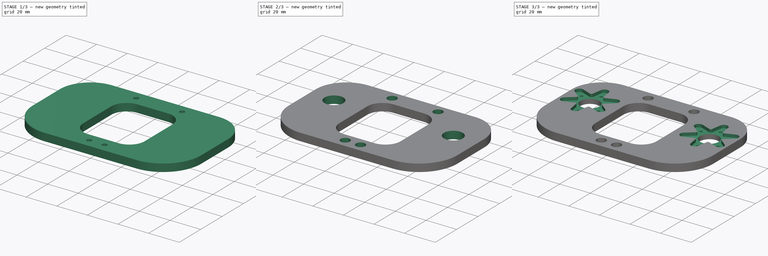
[diagram: build sequence overview — one tinted view per stage of 3, left to right]
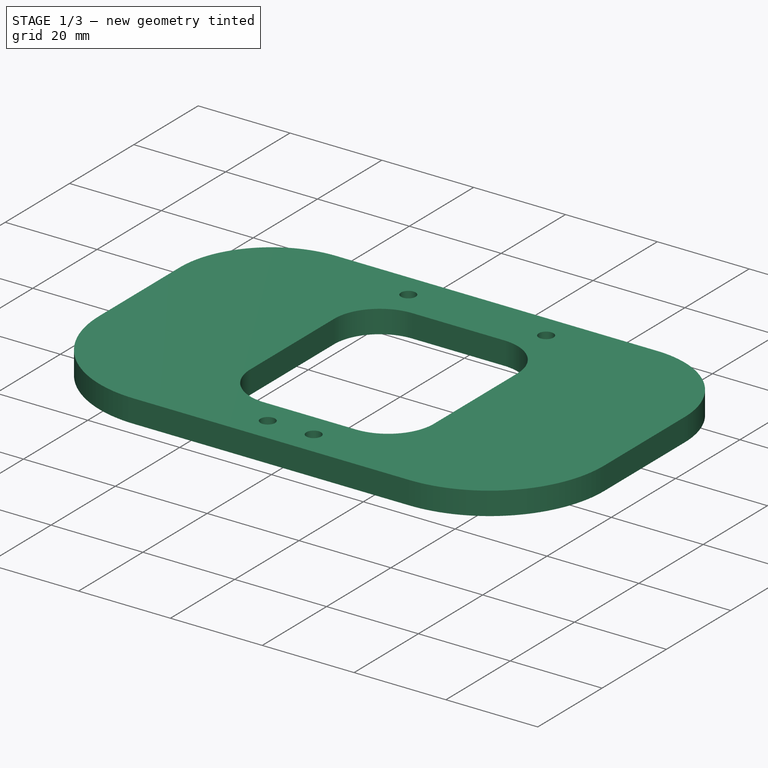
[diagram: stage 1 of 3 — iso view after this stage's code; geometry added in this stage tinted green]
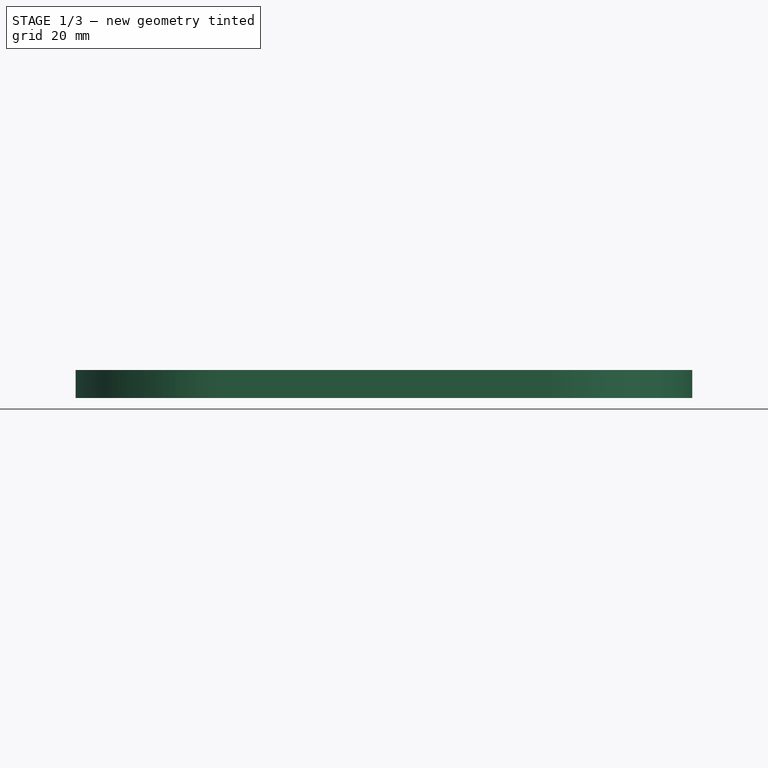
[diagram: stage 1 of 3 — front view after this stage's code; geometry added in this stage tinted green]
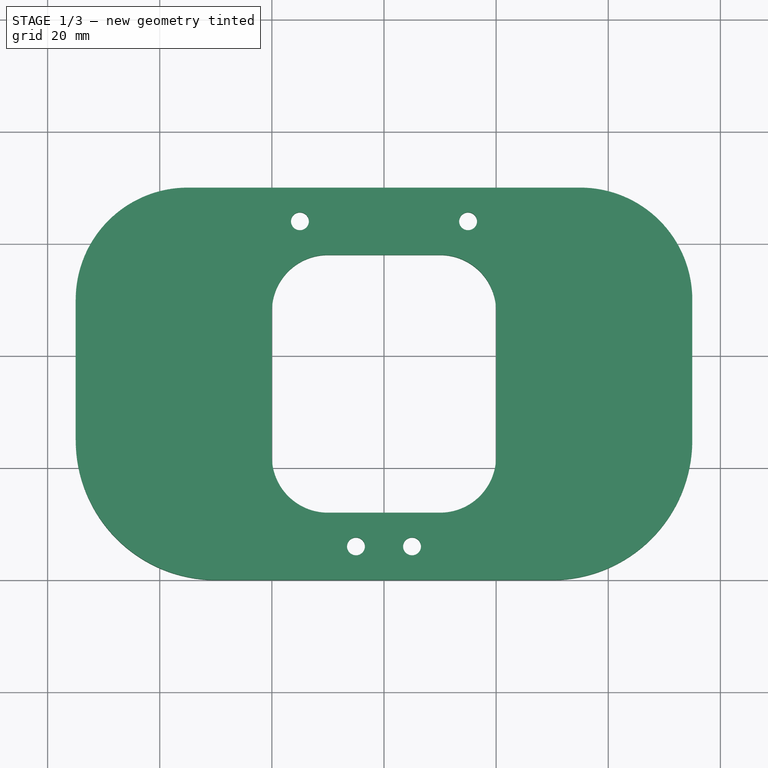
[diagram: stage 1 of 3 — top view after this stage's code; geometry added in this stage tinted green]
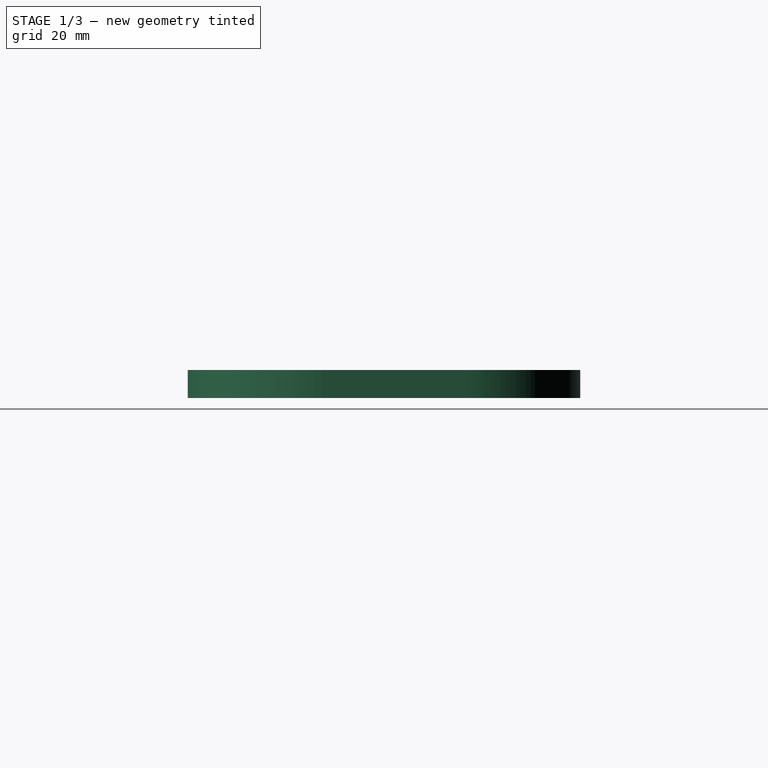
[diagram: stage 1 of 3 — right view after this stage's code; geometry added in this stage tinted green]
FCSTD DOCUMENT  (FreeCAD 0.18R4 (GitTag))
Label: Outer_Shoulder
License: CreativeCommons Attribution-NonCommercial
LicenseURL: http://creativecommons.org/licenses/by-nc/4.0/
objects: Sketcher::SketchObject×7, PartDesign::Pocket×6, PartDesign::Pad×1, PartDesign::Fillet×1, PartDesign::Body×1
note: 23 computed .brp shape members not serialized (recipe doc carries the construction recipe); baked Part::Feature solids carry a one-line shape summary decoded from their .brp

FEATURE [Sketcher::SketchObject] Sketch
  MapMode = 5
  Support = -> [XY_Plane]
  sketch-geometry (8):
    g0: LineSegment StartX=-35 StartY=70 StartZ=0 EndX=35 EndY=70 EndZ=0
    g1: LineSegment StartX=55 StartY=50 StartZ=0 EndX=55 EndY=25 EndZ=0
    g2: LineSegment StartX=30 StartY=0 StartZ=0 EndX=-30 EndY=0 EndZ=0
    g3: LineSegment StartX=-55 StartY=25 StartZ=0 EndX=-55 EndY=50 EndZ=0
    g4: ArcOfCircle CenterX=-35 CenterY=50 CenterZ=0 NormalX=0 NormalY=0 NormalZ=1 AngleXU=0 Radius=20 StartAngle=1.5708 EndAngle=3.14159
    g5: ArcOfCircle CenterX=35 CenterY=50 CenterZ=0 NormalX=0 NormalY=0 NormalZ=1 AngleXU=0 Radius=20 StartAngle=0 EndAngle=1.5708
    g6: ArcOfCircle CenterX=30 CenterY=25 CenterZ=0 NormalX=0 NormalY=0 NormalZ=1 AngleXU=0 Radius=25 StartAngle=4.71239 EndAngle=6.28319
    g7: ArcOfCircle CenterX=-30 CenterY=25 CenterZ=0 NormalX=0 NormalY=0 NormalZ=1 AngleXU=0 Radius=25 StartAngle=3.14159 EndAngle=4.71239
  constraints (19):
    c: Horizontal(g0)
    c: Horizontal(g2)
    c: Vertical(g1)
    c: Vertical(g3)
    c: Tangent(g3,g4) = 1.5708
    c: Tangent(g0,g4) = 1.5708
    c: Tangent(g0,g5) = 1.5708
    c: Tangent(g1,g5) = 1.5708
    c: Tangent(g1,g6) = 1.5708
    c: Tangent(g2,g6) = 1.5708
    c: Tangent(g2,g7) = 1.5708
    c: Tangent(g3,g7) = 1.5708
    c: Equal(g4,g5)
    c: Equal(g7,g6)
    c: Symmetric(g2,g2,g-1)
    c: Radius(g4) = 20
    c: Radius(g7) = 25
    c: DistanceY(g2,g0) = 70
    c: DistanceX(g3,g1) = 110
FEATURE [PartDesign::Pad] Pad  label="Baseplate"
  Length = 5
  Length2 = 100
  Profile = -> Sketch
  Type = 0
FEATURE [Sketcher::SketchObject] Sketch001
  MapMode = 5
  Placement = pos=(0,0,5) rot=(0,0,1;0rad)
  Support = -> [Pad]
  sketch-geometry (8):
    g0: LineSegment StartX=-10 StartY=58 StartZ=0 EndX=10 EndY=58 EndZ=0
    g1: LineSegment StartX=20 StartY=48 StartZ=0 EndX=20 EndY=22 EndZ=0
    g2: LineSegment StartX=10 StartY=12 StartZ=0 EndX=-10 EndY=12 EndZ=0
    g3: LineSegment StartX=-20 StartY=22 StartZ=0 EndX=-20 EndY=48 EndZ=0
    g4: ArcOfCircle CenterX=-10 CenterY=48 CenterZ=0 NormalX=0 NormalY=0 NormalZ=1 AngleXU=0 Radius=10 StartAngle=1.5708 EndAngle=3.14159
    g5: ArcOfCircle CenterX=10 CenterY=48 CenterZ=0 NormalX=0 NormalY=0 NormalZ=1 AngleXU=0 Radius=10 StartAngle=2e-16 EndAngle=1.5708
    g6: ArcOfCircle CenterX=10 CenterY=22 CenterZ=0 NormalX=0 NormalY=0 NormalZ=1 AngleXU=0 Radius=10 StartAngle=4.71239 EndAngle=6.28319
    g7: ArcOfCircle CenterX=-10 CenterY=22 CenterZ=0 NormalX=0 NormalY=0 NormalZ=1 AngleXU=0 Radius=10 StartAngle=3.14159 EndAngle=4.71239
  constraints (19):
    c: Horizontal(g0)
    c: Vertical(g1)
    c: Vertical(g3)
    c: Tangent(g3,g4) = 1.5708
    c: Tangent(g0,g4) = 1.5708
    c: Tangent(g0,g5) = 1.5708
    c: Tangent(g1,g5) = 1.5708
    c: Tangent(g1,g6) = 1.5708
    c: Tangent(g2,g6) = 1.5708
    c: Tangent(g2,g7) = 1.5708
    c: Tangent(g3,g7) = 1.5708
    c: Equal(g5,g4)
    c: Equal(g4,g7)
    c: Equal(g7,g6)
    c: Symmetric(g2,g2,g-2)
    c: DistanceX(g3,g1) = 40
    c: DistanceY(g-1,g2) = 12
    c: DistanceY(g2,g0) = 46
    c: Radius(g5) = 10
FEATURE [PartDesign::Pocket] Pocket  label="Accesshole"
  BaseFeature = -> Pad
  Length = 5
  Length2 = 100
  Profile = -> Sketch001
  Type = 0
FEATURE [Sketcher::SketchObject] Sketch002
  MapMode = 5
  Placement = pos=(0,0,5) rot=(0,0,1;0rad)
  Support = -> [Pocket]
  sketch-geometry (4):
    g0: Circle CenterX=-5 CenterY=6 CenterZ=0 NormalX=0 NormalY=0 NormalZ=1 AngleXU=0 Radius=1.6
    g1: Circle CenterX=5 CenterY=6 CenterZ=0 NormalX=0 NormalY=0 NormalZ=1 AngleXU=0 Radius=1.6
    g2: Circle CenterX=15 CenterY=64 CenterZ=0 NormalX=0 NormalY=0 NormalZ=1 AngleXU=0 Radius=1.6
    g3: Circle CenterX=-15 CenterY=64 CenterZ=0 NormalX=0 NormalY=0 NormalZ=1 AngleXU=0 Radius=1.6
  constraints (10):
    c: Symmetric(g0,g1,g-2)
    c: Symmetric(g3,g2,g-2)
    c: DistanceX(g3,g2) = 30
    c: DistanceX(g0,g1) = 10
    c: DistanceY(g-1,g0) = 6
    c: DistanceY(g-1,g2) = 64
    c: Radius(g1) = 1.6
    c: Equal(g2,g3)
    c: Equal(g3,g0)
    c: Equal(g0,g1)
FEATURE [PartDesign::Pocket] Pocket001  label="Screwholes"
  BaseFeature = -> Pocket
  Length = 5
  Length2 = 100
  Profile = -> Sketch002
  Type = 0
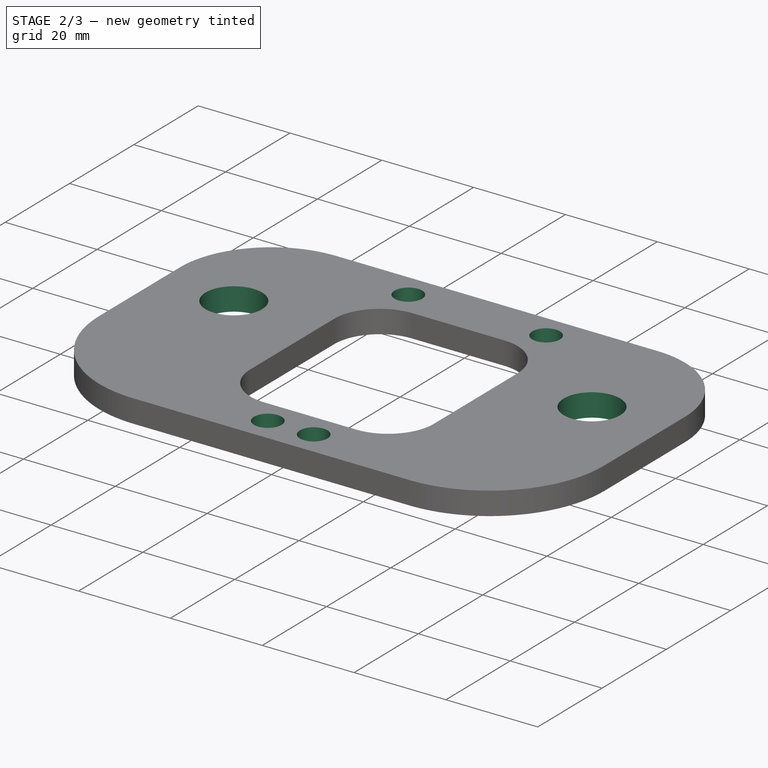
[diagram: stage 2 of 3 — iso view after this stage's code; geometry added in this stage tinted green]
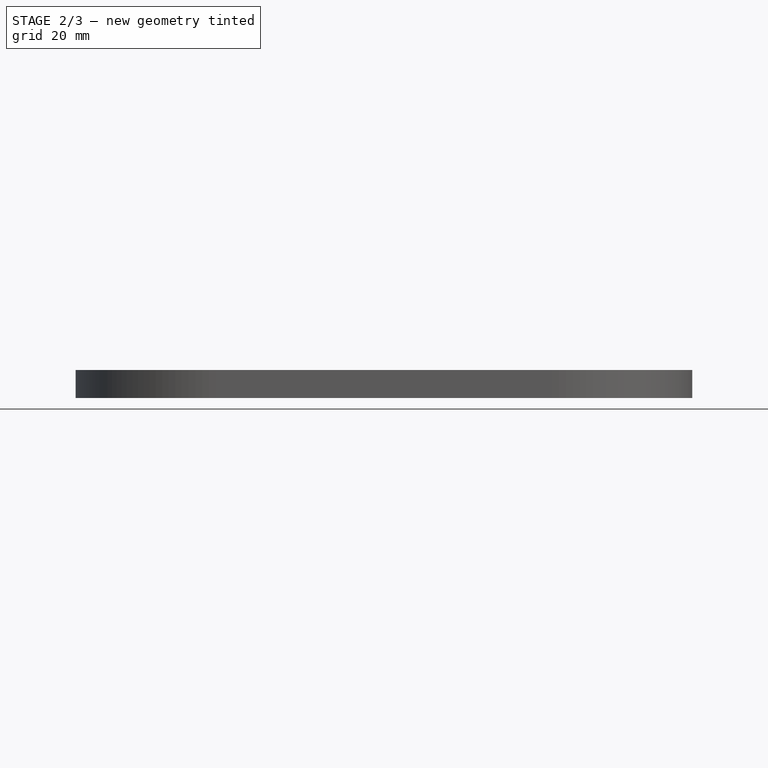
[diagram: stage 2 of 3 — front view after this stage's code; geometry added in this stage tinted green]
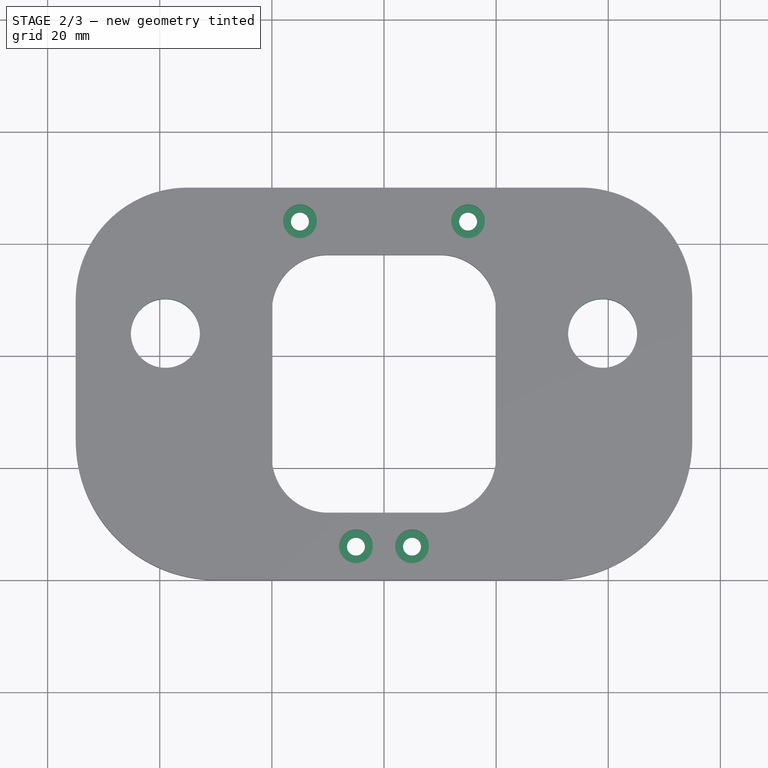
[diagram: stage 2 of 3 — top view after this stage's code; geometry added in this stage tinted green]
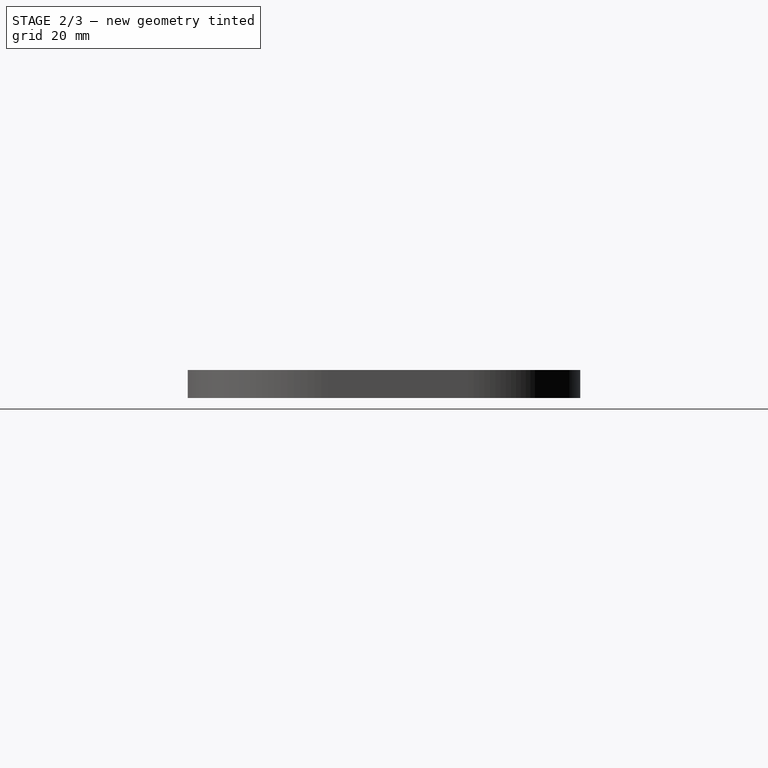
[diagram: stage 2 of 3 — right view after this stage's code; geometry added in this stage tinted green]
FEATURE [Sketcher::SketchObject] Sketch003
  ExternalGeometry = -> [Pocket001]
  MapMode = 5
  Placement = pos=(0,0,5) rot=(0,0,1;0rad)
  Support = -> [Pocket001]
  sketch-geometry (4):
    g0: Circle CenterX=-15 CenterY=64 CenterZ=0 NormalX=0 NormalY=0 NormalZ=1 AngleXU=0 Radius=3
    g1: Circle CenterX=15 CenterY=64 CenterZ=0 NormalX=0 NormalY=0 NormalZ=1 AngleXU=0 Radius=3
    g2: Circle CenterX=-5 CenterY=6 CenterZ=0 NormalX=0 NormalY=0 NormalZ=1 AngleXU=0 Radius=3
    g3: Circle CenterX=5 CenterY=6 CenterZ=0 NormalX=0 NormalY=0 NormalZ=1 AngleXU=0 Radius=3
  constraints (8):
    c: Coincident(g0,g-3)
    c: Coincident(g1,g-4)
    c: Coincident(g2,g-5)
    c: Coincident(g3,g-6)
    c: Equal(g3,g2)
    c: Equal(g2,g0)
    c: Equal(g0,g1)
    c: Radius(g1) = 3
FEATURE [PartDesign::Pocket] Pocket002  label="Screwheads"
  BaseFeature = -> Pocket001
  Length = 3
  Length2 = 100
  Profile = -> Sketch003
  Type = 0
FEATURE [Sketcher::SketchObject] Sketch004
  MapMode = 5
  Placement = pos=(0,0,5) rot=(0,0,1;0rad)
  Support = -> [Pocket002]
  sketch-geometry (2):
    g0: Circle CenterX=-39 CenterY=44 CenterZ=0 NormalX=0 NormalY=0 NormalZ=1 AngleXU=0 Radius=6.15
    g1: Circle CenterX=39 CenterY=44 CenterZ=0 NormalX=0 NormalY=0 NormalZ=1 AngleXU=0 Radius=6.15
  constraints (5):
    c: Equal(g1,g0)
    c: Symmetric(g0,g1,g-2)
    c: DistanceX(g0,g1) = 78
    c: DistanceY(g-1,g0) = 44
    c: Radius(g0) = 6.15
FEATURE [PartDesign::Pocket] Pocket003  label="Servohorn Axis"
  BaseFeature = -> Pocket002
  Length = 5
  Length2 = 100
  Profile = -> Sketch004
  Type = 0
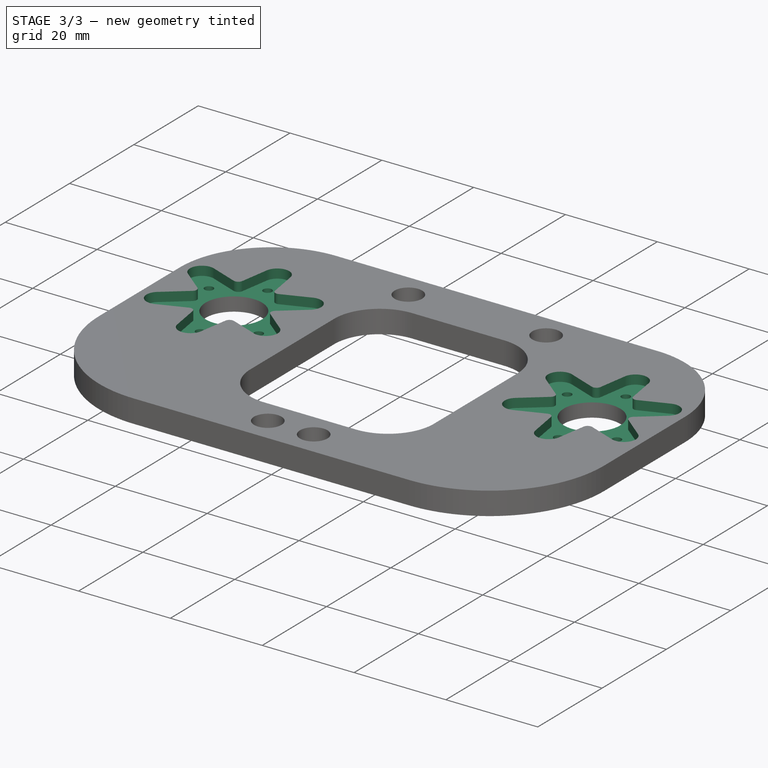
[diagram: stage 3 of 3 — iso view after this stage's code; geometry added in this stage tinted green]
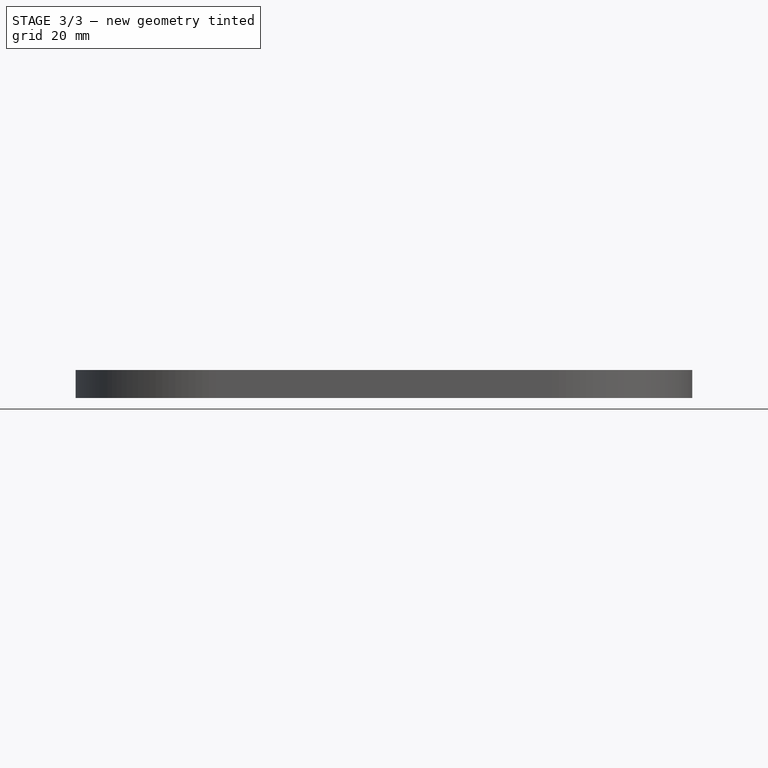
[diagram: stage 3 of 3 — front view after this stage's code; geometry added in this stage tinted green]
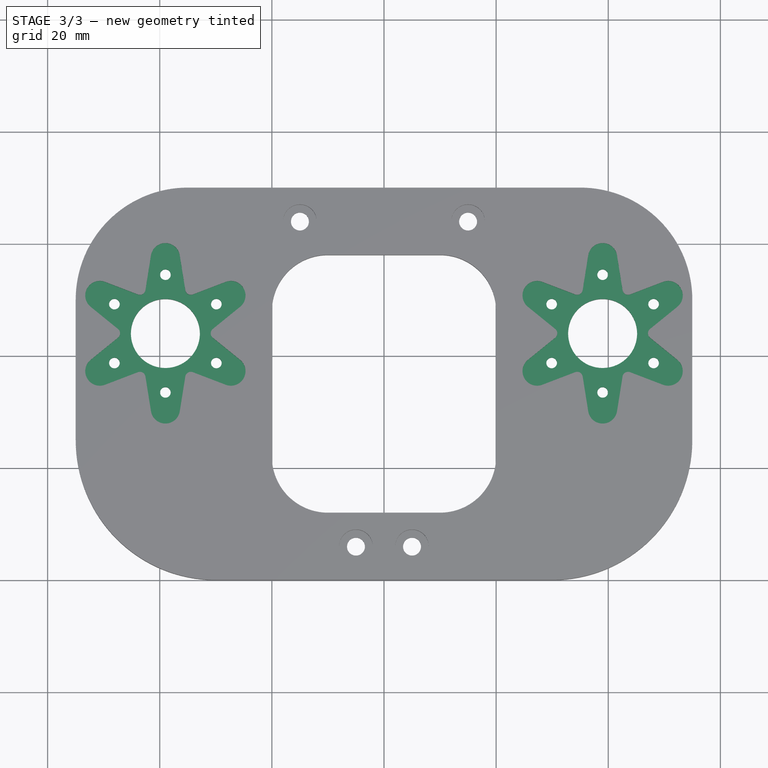
[diagram: stage 3 of 3 — top view after this stage's code; geometry added in this stage tinted green]
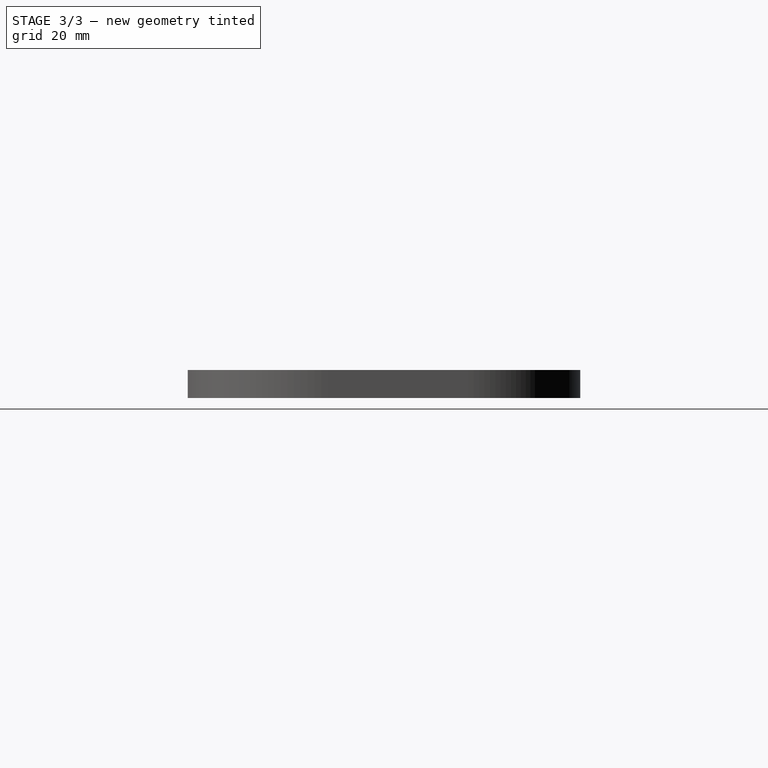
[diagram: stage 3 of 3 — right view after this stage's code; geometry added in this stage tinted green]
FEATURE [Sketcher::SketchObject] Sketch005
  ExternalGeometry = -> [Pocket003]
  MapMode = 5
  Placement = pos=(0,0,5) rot=(0,0,1;0rad)
  Support = -> [Pocket003]
  sketch-geometry (64):
    g0: LineSegment [constr] StartX=-39 StartY=57.5 StartZ=0 EndX=-50.6913 EndY=50.75 EndZ=0
    g1: LineSegment [constr] StartX=-50.6913 StartY=50.75 StartZ=0 EndX=-50.6913 EndY=37.25 EndZ=0
    g2: LineSegment [constr] StartX=-50.6913 StartY=37.25 StartZ=0 EndX=-39 EndY=30.5 EndZ=0
    g3: LineSegment [constr] StartX=-39 StartY=30.5 StartZ=0 EndX=-27.3087 EndY=37.25 EndZ=0
    g4: LineSegment [constr] StartX=-27.3087 StartY=37.25 StartZ=0 EndX=-27.3087 EndY=50.75 EndZ=0
    g5: LineSegment [constr] StartX=-27.3087 StartY=50.75 StartZ=0 EndX=-39 EndY=57.5 EndZ=0
    g6: Circle [constr] CenterX=-39 CenterY=44 CenterZ=0 NormalX=0 NormalY=0 NormalZ=1 AngleXU=0 Radius=13.5
    g7: LineSegment [constr] StartX=39 StartY=57.5 StartZ=0 EndX=27.3087 EndY=50.75 EndZ=0
    g8: LineSegment [constr] StartX=27.3087 StartY=50.75 StartZ=0 EndX=27.3087 EndY=37.25 EndZ=0
    g9: LineSegment [constr] StartX=27.3087 StartY=37.25 StartZ=0 EndX=39 EndY=30.5 EndZ=0
    g10: LineSegment [constr] StartX=39 StartY=30.5 StartZ=0 EndX=50.6913 EndY=37.25 EndZ=0
    g11: LineSegment [constr] StartX=50.6913 StartY=37.25 StartZ=0 EndX=50.6913 EndY=50.75 EndZ=0
    g12: LineSegment [constr] StartX=50.6913 StartY=50.75 StartZ=0 EndX=39 EndY=57.5 EndZ=0
    g13: Circle [constr] CenterX=39 CenterY=44 CenterZ=0 NormalX=0 NormalY=0 NormalZ=1 AngleXU=0 Radius=13.5
    g14: ArcOfCircle CenterX=-39 CenterY=57.5 CenterZ=0 NormalX=0 NormalY=0 NormalZ=1 AngleXU=0 Radius=2.6 StartAngle=0.15815 EndAngle=2.98344
    g15: ArcOfCircle CenterX=-27.3087 CenterY=50.75 CenterZ=0 NormalX=0 NormalY=0 NormalZ=1 AngleXU=0 Radius=2.6 StartAngle=5.39414 EndAngle=8.21943
    g16: ArcOfCircle CenterX=-27.3087 CenterY=37.25 CenterZ=0 NormalX=0 NormalY=0 NormalZ=1 AngleXU=0 Radius=2.6 StartAngle=4.34694 EndAngle=7.17223
    g17: ArcOfCircle CenterX=-39 CenterY=30.5 CenterZ=0 NormalX=0 NormalY=0 NormalZ=1 AngleXU=0 Radius=2.6 StartAngle=3.29974 EndAngle=6.12503
    g18: ArcOfCircle CenterX=-50.6913 CenterY=37.25 CenterZ=0 NormalX=0 NormalY=0 NormalZ=1 AngleXU=0 Radius=2.6 StartAngle=2.25255 EndAngle=5.07784
    g19: ArcOfCircle CenterX=-50.6913 CenterY=50.75 CenterZ=0 NormalX=0 NormalY=0 NormalZ=1 AngleXU=0 Radius=2.6 StartAngle=1.20535 EndAngle=4.03064
    g20: ArcOfCircle CenterX=39 CenterY=57.5 CenterZ=0 NormalX=0 NormalY=0 NormalZ=1 AngleXU=0 Radius=2.6 StartAngle=0.15815 EndAngle=2.98344
    g21: ArcOfCircle CenterX=50.6913 CenterY=50.75 CenterZ=0 NormalX=0 NormalY=0 NormalZ=1 AngleXU=0 Radius=2.6 StartAngle=5.39414 EndAngle=8.21943
    g22: ArcOfCircle CenterX=50.6913 CenterY=37.25 CenterZ=0 NormalX=0 NormalY=0 NormalZ=1 AngleXU=0 Radius=2.6 StartAngle=4.34694 EndAngle=7.17223
    g23: ArcOfCircle CenterX=39 CenterY=30.5 CenterZ=0 NormalX=0 NormalY=0 NormalZ=1 AngleXU=0 Radius=2.6 StartAngle=3.29974 EndAngle=6.12503
    g24: ArcOfCircle CenterX=27.3087 CenterY=37.25 CenterZ=0 NormalX=0 NormalY=0 NormalZ=1 AngleXU=0 Radius=2.6 StartAngle=2.25255 EndAngle=5.07784
    g25: ArcOfCircle CenterX=27.3087 CenterY=50.75 CenterZ=0 NormalX=0 NormalY=0 NormalZ=1 AngleXU=0 Radius=2.6 StartAngle=1.20535 EndAngle=4.03064
    g26: LineSegment [constr] StartX=-42.75 StartY=50.4952 StartZ=0 EndX=-46.5 EndY=44 EndZ=0
    g27: LineSegment [constr] StartX=-46.5 StartY=44 StartZ=0 EndX=-42.75 EndY=37.5048 EndZ=0
    g28: LineSegment [constr] StartX=-42.75 StartY=37.5048 StartZ=0 EndX=-35.25 EndY=37.5048 EndZ=0
    g29: LineSegment [constr] StartX=-35.25 StartY=37.5048 StartZ=0 EndX=-31.5 EndY=44 EndZ=0
    g30: LineSegment [constr] StartX=-31.5 StartY=44 StartZ=0 EndX=-35.25 EndY=50.4952 EndZ=0
    g31: LineSegment [constr] StartX=-35.25 StartY=50.4952 StartZ=0 EndX=-42.75 EndY=50.4952 EndZ=0
    g32: Circle [constr] CenterX=-39 CenterY=44 CenterZ=0 NormalX=0 NormalY=0 NormalZ=1 AngleXU=0 Radius=7.5
    g33: LineSegment [constr] StartX=42.75 StartY=50.4952 StartZ=0 EndX=35.25 EndY=50.4952 EndZ=0
    g34: LineSegment [constr] StartX=35.25 StartY=50.4952 StartZ=0 EndX=31.5 EndY=44 EndZ=0
    g35: LineSegment [constr] StartX=31.5 StartY=44 StartZ=0 EndX=35.25 EndY=37.5048 EndZ=0
    g36: LineSegment [constr] StartX=35.25 StartY=37.5048 StartZ=0 EndX=42.75 EndY=37.5048 EndZ=0
    g37: LineSegment [constr] StartX=42.75 StartY=37.5048 StartZ=0 EndX=46.5 EndY=44 EndZ=0
    g38: LineSegment [constr] StartX=46.5 StartY=44 StartZ=0 EndX=42.75 EndY=50.4952 EndZ=0
    g39: Circle [constr] CenterX=39 CenterY=44 CenterZ=0 NormalX=0 NormalY=0 NormalZ=1 AngleXU=0 Radius=7.5
    g40: LineSegment StartX=-49.7622 StartY=53.1783 StartZ=0 EndX=-42.75 EndY=50.4952 EndZ=0
    g41: LineSegment StartX=-41.5676 StartY=57.9095 StartZ=0 EndX=-42.75 EndY=50.4952 EndZ=0
    g42: LineSegment StartX=-36.4324 StartY=57.9095 StartZ=0 EndX=-35.25 EndY=50.4952 EndZ=0
    g43: LineSegment StartX=-35.25 StartY=50.4952 StartZ=0 EndX=-28.2378 EndY=53.1783 EndZ=0
    g44: LineSegment StartX=-25.6703 StartY=48.7312 StartZ=0 EndX=-31.5 EndY=44 EndZ=0
    g45: LineSegment StartX=-31.5 StartY=44 StartZ=0 EndX=-25.6703 EndY=39.2688 EndZ=0
    g46: LineSegment StartX=-28.2378 StartY=34.8217 StartZ=0 EndX=-35.25 EndY=37.5048 EndZ=0
    g47: LineSegment StartX=-35.25 StartY=37.5048 StartZ=0 EndX=-36.4324 EndY=30.0905 EndZ=0
    g48: LineSegment StartX=-41.5676 StartY=30.0905 StartZ=0 EndX=-42.75 EndY=37.5048 EndZ=0
    g49: LineSegment StartX=-42.75 StartY=37.5048 StartZ=0 EndX=-49.7622 EndY=34.8217 EndZ=0
    g50: LineSegment StartX=-52.3297 StartY=39.2688 StartZ=0 EndX=-46.5 EndY=44 EndZ=0
    g51: LineSegment StartX=-46.5 StartY=44 StartZ=0 EndX=-52.3297 EndY=48.7312 EndZ=0
    g52: LineSegment StartX=25.6703 StartY=48.7312 StartZ=0 EndX=31.5 EndY=44 EndZ=0
    g53: LineSegment StartX=31.5 StartY=44 StartZ=0 EndX=25.6703 EndY=39.2688 EndZ=0
    g54: LineSegment StartX=28.2378 StartY=34.8217 StartZ=0 EndX=35.25 EndY=37.5048 EndZ=0
    g55: LineSegment StartX=35.25 StartY=37.5048 StartZ=0 EndX=36.4324 EndY=30.0905 EndZ=0
    g56: LineSegment StartX=41.5676 StartY=30.0905 StartZ=0 EndX=42.75 EndY=37.5048 EndZ=0
    g57: LineSegment StartX=42.75 StartY=37.5048 StartZ=0 EndX=49.7622 EndY=34.8217 EndZ=0
    g58: LineSegment StartX=52.3297 StartY=39.2688 StartZ=0 EndX=46.5 EndY=44 EndZ=0
    g59: LineSegment StartX=46.5 StartY=44 StartZ=0 EndX=52.3297 EndY=48.7312 EndZ=0
    g60: LineSegment StartX=49.7622 StartY=53.1783 StartZ=0 EndX=42.75 EndY=50.4952 EndZ=0
    g61: LineSegment StartX=42.75 StartY=50.4952 StartZ=0 EndX=41.5676 EndY=57.9095 EndZ=0
    g62: LineSegment StartX=36.4324 StartY=57.9095 StartZ=0 EndX=35.25 EndY=50.4952 EndZ=0
    g63: LineSegment StartX=35.25 StartY=50.4952 StartZ=0 EndX=28.2378 EndY=53.1783 EndZ=0
  constraints (127):
    c: Coincident(g0,g1)
    c: Coincident(g1,g2)
    c: Coincident(g2,g3)
    c: Coincident(g3,g4)
    c: Coincident(g4,g5)
    c: Coincident(g5,g0)
    c: Equal(g0, g1-g5) x5
    c: PointOnObject(g0,g6)
    c: PointOnObject(g1,g6)
    c: PointOnObject(g2,g6)
    c: PointOnObject(g3,g6)
    c: PointOnObject(g4,g6)
    c: PointOnObject(g5,g6)
    c: Coincident(g7,g8)
    c: Coincident(g8,g9)
    c: Coincident(g9,g10)
    c: Coincident(g10,g11)
    c: Coincident(g11,g12)
    c: Coincident(g12,g7)
    c: Equal(g7, g8-g12) x5
    c: PointOnObject(g7,g13)
    c: PointOnObject(g8,g13)
    c: PointOnObject(g9,g13)
    c: PointOnObject(g10,g13)
    c: PointOnObject(g11,g13)
    c: PointOnObject(g12,g13)
    c: Coincident(g13,g-4)
    c: Coincident(g6,g-3)
    c: Equal(g6,g13)
    c: Vertical(g8)
    c: Vertical(g4)
    c: Radius(g6) = 13.5
    c: Coincident(g26,g27)
    c: Coincident(g27,g28)
    c: Coincident(g28,g29)
    c: Coincident(g29,g30)
    c: Coincident(g30,g31)
    c: Coincident(g31,g26)
    c: Equal(g26, g27-g31) x5
    c: PointOnObject(g26,g32)
    c: PointOnObject(g27,g32)
    c: PointOnObject(g28,g32)
    c: PointOnObject(g29,g32)
    c: PointOnObject(g30,g32)
    c: PointOnObject(g31,g32)
    c: Coincident(g32,g6)
    c: Coincident(g33,g34)
    c: Coincident(g34,g35)
    c: Coincident(g35,g36)
    c: Coincident(g36,g37)
    c: Coincident(g37,g38)
    c: Coincident(g38,g33)
    c: Equal(g33, g34-g38) x5
    c: PointOnObject(g33,g39)
    c: PointOnObject(g34,g39)
    c: PointOnObject(g35,g39)
    c: PointOnObject(g36,g39)
    c: PointOnObject(g37,g39)
    c: PointOnObject(g38,g39)
    c: Coincident(g13,g39)
    c: Equal(g32,g39)
    c: Radius(g39) = 7.5
    c: Horizontal(g31)
    c: Horizontal(g33)
    c: Coincident(g40,g26)
    c: Coincident(g41,g40)
    c: Coincident(g42,g30)
    c: Coincident(g43,g42)
    c: Coincident(g44,g29)
    c: Coincident(g45,g44)
    c: Coincident(g46,g28)
    c: Coincident(g47,g46)
    c: Coincident(g48,g27)
    c: Coincident(g49,g48)
    c: Coincident(g50,g26)
    c: Coincident(g51,g50)
    c: Coincident(g52,g34)
    c: Coincident(g53,g52)
    c: Coincident(g54,g35)
    c: Coincident(g55,g54)
    c: Coincident(g56,g36)
    c: Coincident(g57,g56)
    c: Coincident(g58,g37)
    c: Coincident(g59,g58)
    c: Coincident(g60,g33)
    c: Coincident(g61,g60)
    c: Coincident(g62,g33)
    c: Coincident(g63,g62)
    c: Radius(g19) = 2.6
    c: Equal(g19, g14-g18) x5
    c: Equal(g19, g20-g25) x6
    c: Tangent(g42,g14) = 1.5708
    c: Tangent(g43,g15) = 1.5708
    c: Tangent(g44,g15) = 1.5708
    c: Tangent(g45,g16) = 1.5708
    c: Tangent(g46,g16) = 1.5708
    c: Tangent(g47,g17) = 1.5708
    c: Tangent(g48,g17) = 1.5708
    c: Tangent(g49,g18) = 1.5708
    c: Tangent(g50,g18) = 1.5708
    c: Tangent(g51,g19) = 1.5708
    c: Tangent(g40,g19) = 1.5708
    c: Tangent(g41,g14) = -1.5708
    c: Tangent(g61,g20) = -1.5708
    c: Tangent(g60,g21) = -1.5708
    c: Tangent(g59,g21) = -1.5708
    c: Tangent(g58,g22) = -1.5708
    c: Tangent(g57,g22) = -1.5708
    c: Tangent(g56,g23) = -1.5708
    c: Tangent(g55,g23) = -1.5708
    c: Tangent(g54,g24) = -1.5708
    c: Tangent(g53,g24) = -1.5708
    c: Tangent(g52,g25) = -1.5708
    c: Tangent(g63,g25) = -1.5708
    c: Tangent(g62,g20) = -1.5708
    c: Coincident(g20,g7)
    c: Coincident(g21,g11)
    c: Coincident(g22,g10)
    c: Coincident(g23,g9)
    c: Coincident(g24,g8)
    c: Coincident(g25,g7)
    c: Coincident(g14,g0)
    c: Coincident(g15,g4)
    c: Coincident(g16,g3)
    c: Coincident(g17,g2)
    c: Coincident(g18,g1)
    c: Coincident(g19,g0)
FEATURE [PartDesign::Pocket] Pocket004  label="Servohorn Mount"
  BaseFeature = -> Pocket003
  Length = 2
  Length2 = 100
  Profile = -> Sketch005
  Type = 0
FEATURE [Sketcher::SketchObject] Sketch006
  ExternalGeometry = -> [Pocket004]
  MapMode = 5
  Placement = pos=(0,0,3) rot=(0,0,1;0rad)
  Support = -> [Pocket004]
  sketch-geometry (26):
    g0: LineSegment [constr] StartX=-39 StartY=54.5 StartZ=0 EndX=-48.0933 EndY=49.25 EndZ=0
    g1: LineSegment [constr] StartX=-48.0933 StartY=49.25 StartZ=0 EndX=-48.0933 EndY=38.75 EndZ=0
    g2: LineSegment [constr] StartX=-48.0933 StartY=38.75 StartZ=0 EndX=-39 EndY=33.5 EndZ=0
    g3: LineSegment [constr] StartX=-39 StartY=33.5 StartZ=0 EndX=-29.9067 EndY=38.75 EndZ=0
    g4: LineSegment [constr] StartX=-29.9067 StartY=38.75 StartZ=0 EndX=-29.9067 EndY=49.25 EndZ=0
    g5: LineSegment [constr] StartX=-29.9067 StartY=49.25 StartZ=0 EndX=-39 EndY=54.5 EndZ=0
    g6: Circle [constr] CenterX=-39 CenterY=44 CenterZ=0 NormalX=0 NormalY=0 NormalZ=1 AngleXU=0 Radius=10.5
    g7: LineSegment [constr] StartX=39 StartY=54.5 StartZ=0 EndX=29.9067 EndY=49.25 EndZ=0
    g8: LineSegment [constr] StartX=29.9067 StartY=49.25 StartZ=0 EndX=29.9067 EndY=38.75 EndZ=0
    g9: LineSegment [constr] StartX=29.9067 StartY=38.75 StartZ=0 EndX=39 EndY=33.5 EndZ=0
    g10: LineSegment [constr] StartX=39 StartY=33.5 StartZ=0 EndX=48.0933 EndY=38.75 EndZ=0
    g11: LineSegment [constr] StartX=48.0933 StartY=38.75 StartZ=0 EndX=48.0933 EndY=49.25 EndZ=0
    g12: LineSegment [constr] StartX=48.0933 StartY=49.25 StartZ=0 EndX=39 EndY=54.5 EndZ=0
    g13: Circle [constr] CenterX=39 CenterY=44 CenterZ=0 NormalX=0 NormalY=0 NormalZ=1 AngleXU=0 Radius=10.5
    g14: Circle CenterX=-39 CenterY=54.5 CenterZ=0 NormalX=0 NormalY=0 NormalZ=1 AngleXU=0 Radius=0.95
    g15: Circle CenterX=-29.9067 CenterY=49.25 CenterZ=0 NormalX=0 NormalY=0 NormalZ=1 AngleXU=0 Radius=0.95
    g16: Circle CenterX=-29.9067 CenterY=38.75 CenterZ=0 NormalX=0 NormalY=0 NormalZ=1 AngleXU=0 Radius=0.95
    g17: Circle CenterX=-39 CenterY=33.5 CenterZ=0 NormalX=0 NormalY=0 NormalZ=1 AngleXU=0 Radius=0.95
    g18: Circle CenterX=-48.0933 CenterY=38.75 CenterZ=0 NormalX=0 NormalY=0 NormalZ=1 AngleXU=0 Radius=0.95
    g19: Circle CenterX=-48.0933 CenterY=49.25 CenterZ=0 NormalX=0 NormalY=0 NormalZ=1 AngleXU=0 Radius=0.95
    g20: Circle CenterX=29.9067 CenterY=49.25 CenterZ=0 NormalX=0 NormalY=0 NormalZ=1 AngleXU=0 Radius=0.95
    g21: Circle CenterX=39 CenterY=54.5 CenterZ=0 NormalX=0 NormalY=0 NormalZ=1 AngleXU=0 Radius=0.95
    g22: Circle CenterX=48.0933 CenterY=49.25 CenterZ=0 NormalX=0 NormalY=0 NormalZ=1 AngleXU=0 Radius=0.95
    g23: Circle CenterX=48.0933 CenterY=38.75 CenterZ=0 NormalX=0 NormalY=0 NormalZ=1 AngleXU=0 Radius=0.95
    g24: Circle CenterX=39 CenterY=33.5 CenterZ=0 NormalX=0 NormalY=0 NormalZ=1 AngleXU=0 Radius=0.95
    g25: Circle CenterX=29.9067 CenterY=38.75 CenterZ=0 NormalX=0 NormalY=0 NormalZ=1 AngleXU=0 Radius=0.95
  constraints (48):
    c: Coincident(g0,g1)
    c: Coincident(g1,g2)
    c: Coincident(g2,g3)
    c: Coincident(g3,g4)
    c: Coincident(g4,g5)
    c: Coincident(g5,g0)
    c: Equal(g0, g1-g5) x5
    c: PointOnObject(g0,g6)
    c: PointOnObject(g1,g6)
    c: PointOnObject(g2,g6)
    c: PointOnObject(g3,g6)
    c: PointOnObject(g4,g6)
    c: PointOnObject(g5,g6)
    c: Coincident(g6,g-3)
    c: Coincident(g7,g8)
    c: Coincident(g8,g9)
    c: Coincident(g9,g10)
    c: Coincident(g10,g11)
    c: Coincident(g11,g12)
    c: Coincident(g12,g7)
    c: Equal(g7, g8-g12) x5
    c: PointOnObject(g7,g13)
    c: PointOnObject(g8,g13)
    c: PointOnObject(g9,g13)
    c: PointOnObject(g10,g13)
    c: PointOnObject(g11,g13)
    c: PointOnObject(g12,g13)
    c: Coincident(g13,g-4)
    c: Vertical(g4)
    c: Vertical(g8)
    c: Equal(g13,g6)
    c: Radius(g6) = 10.5
    c: Coincident(g14,g0)
    c: Coincident(g15,g4)
    c: Coincident(g16,g3)
    c: Coincident(g17,g2)
    c: Coincident(g18,g1)
    c: Coincident(g19,g0)
    c: Coincident(g20,g7)
    c: Coincident(g21,g7)
    c: Coincident(g22,g11)
    c: Coincident(g23,g10)
    c: Coincident(g24,g9)
    c: Coincident(g25,g8)
    c: Radius(g20) = 0.95
    c: Equal(g20, g21-g25) x5
    c: Equal(g20, g15-g19) x5
    c: Equal(g20,g14)
FEATURE [PartDesign::Pocket] Pocket005  label="Servohorn Screws"
  BaseFeature = -> Pocket004
  Length = 3
  Length2 = 100
  Profile = -> Sketch006
  Type = 0
FEATURE [PartDesign::Fillet] Fillet  label="Servohorn Fillet"
  Base = -> Pocket005 [Edge214,Edge184,Edge190,Edge208,Edge174,Edge143,Edge168,Edge150,Edge202,Edge196,Edge162,Edge156]
  BaseFeature = -> Pocket005
  Radius = 1
FEATURE [PartDesign::Body] Body  label="Outer_Shoulder"
  Group = -> [Sketch,Pad,Sketch001,Pocket,Sketch002,Pocket001,Sketch003,Pocket002,Sketch004,Pocket003,Sketch005,Pocket004,Sketch006,Pocket005,Fillet]
  Origin = -> Origin
  Tip = -> Fillet
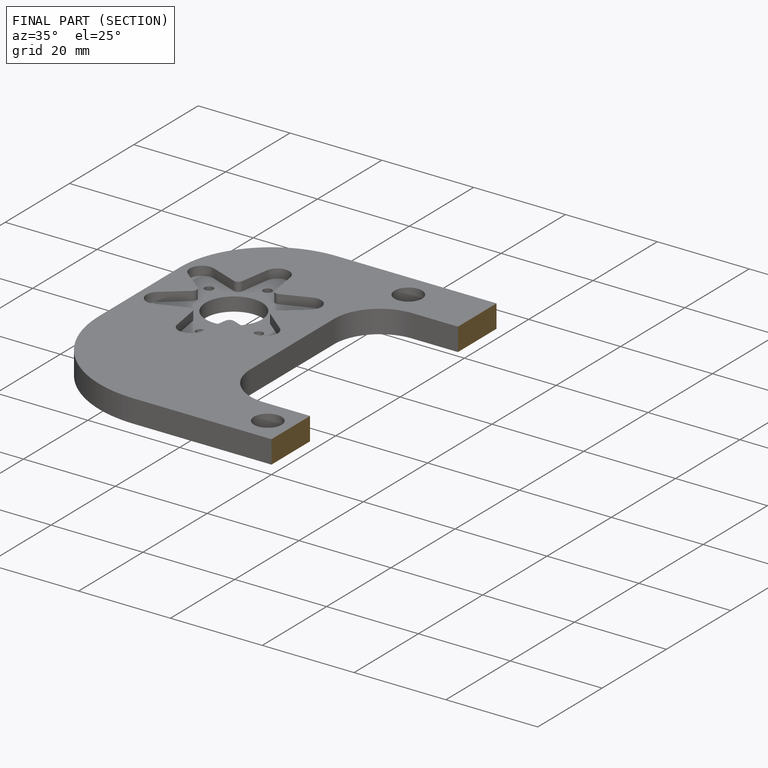
[diagram: finished part — half-section view (interior)]
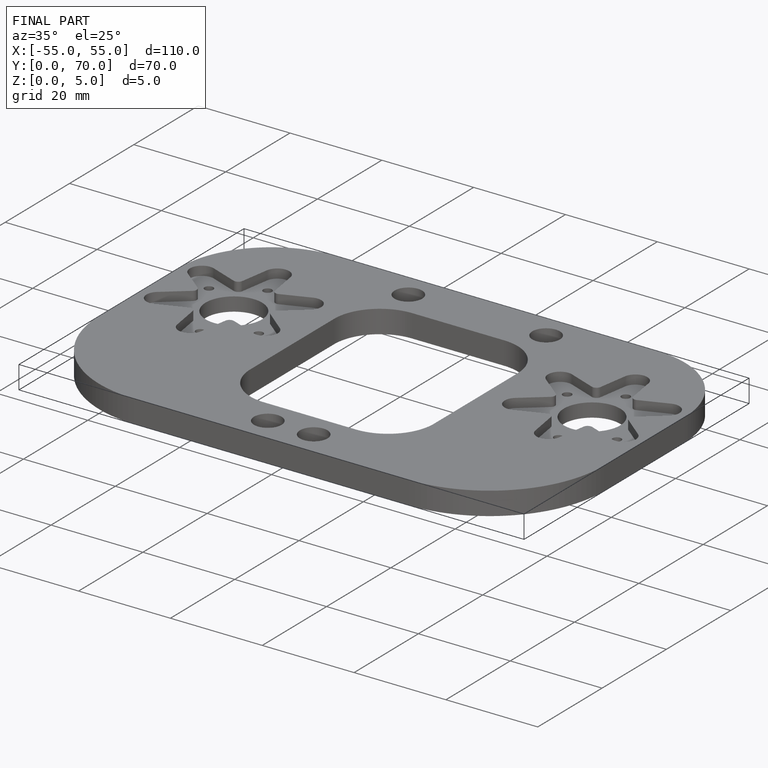
[diagram: finished part — iso view with bounding-box wireframe]
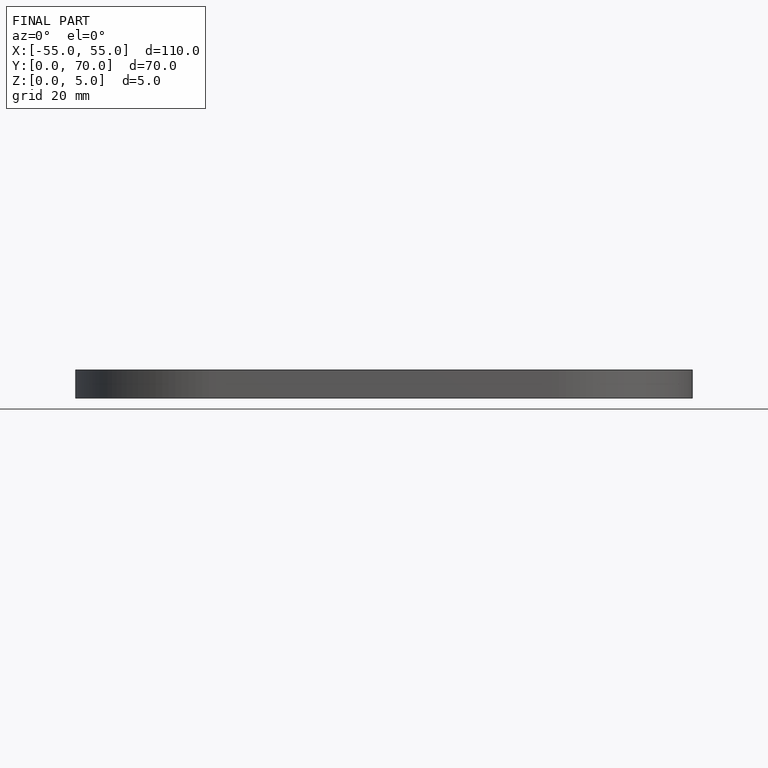
[diagram: finished part — front view with bounding-box wireframe]
